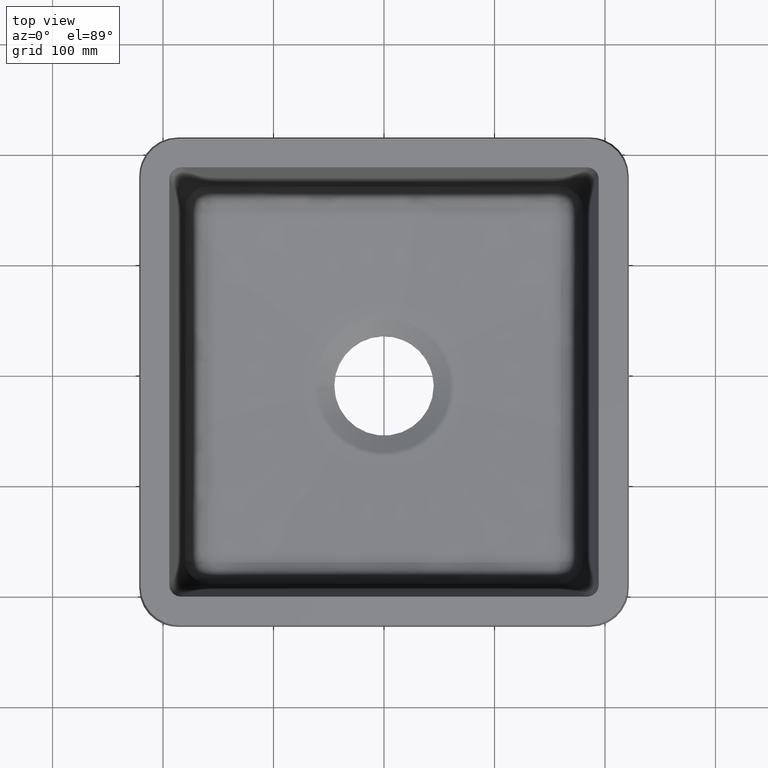
[diagram: clean part render]
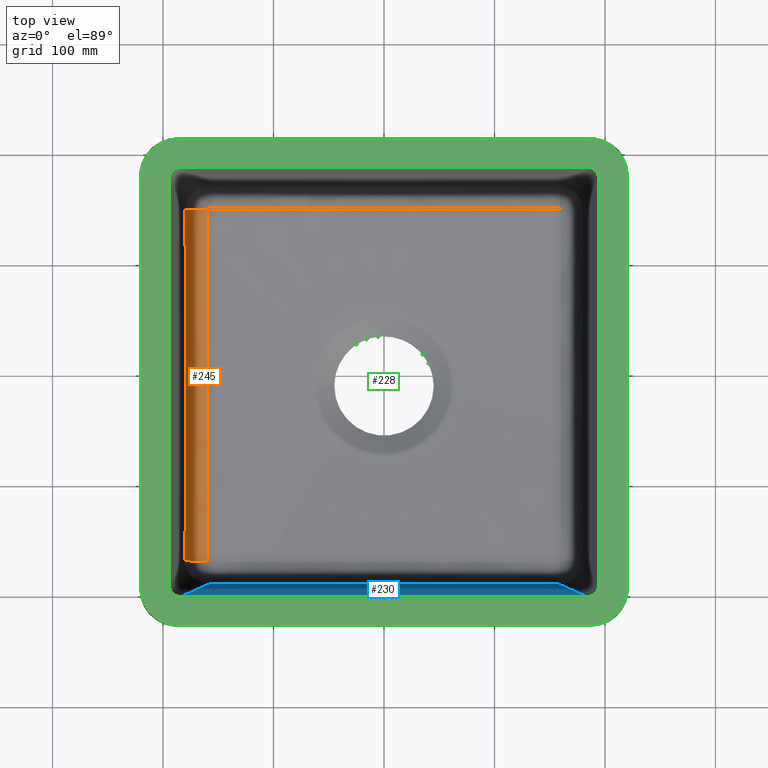
[diagram: same view with three faces highlighted in distinct colors, each labeled with its STEP entity id]
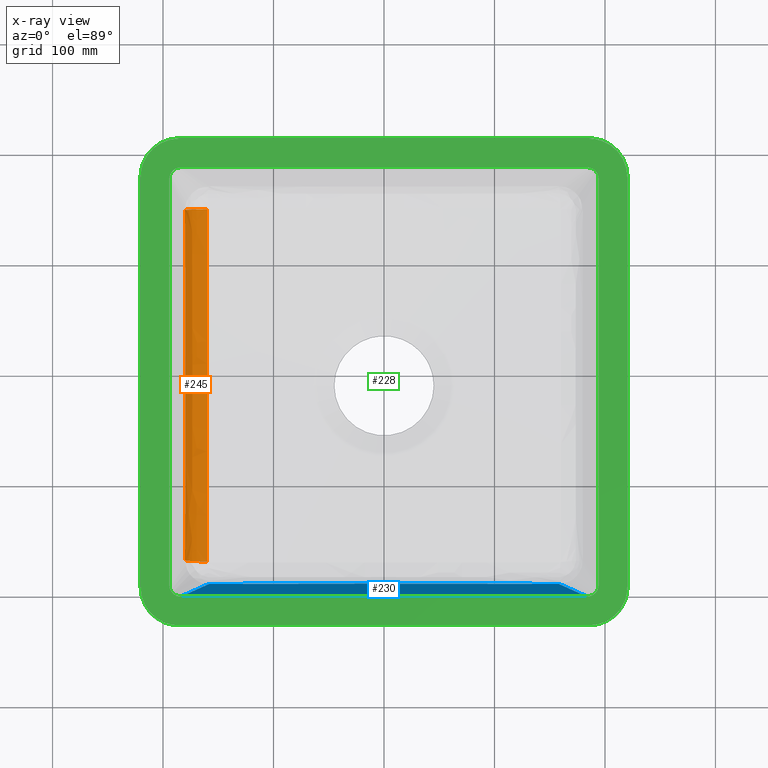
[diagram: x-ray of the same camera — body ghosted, the three highlighted faces saturated]
A machine part, top view with three faces highlighted in distinct colors.
The next image is the same camera in x-ray (body ghosted, the three faces saturated) — at least one of them is partly hidden behind the body in this view.
Their STEP definitions:

[orange] entity #245 — the highlighted face is a freeform B-spline surface patch.
#245=ADVANCED_FACE('',(#370),#296,.T.);
#296=(
BOUNDED_SURFACE()
B_SPLINE_SURFACE(3,2,((#4370,#4371,#4372),(#4373,#4374,#4375),(#4376,#4377,
#4378),(#4379,#4380,#4381),(#4382,#4383,#4384),(#4385,#4386,#4387),(#4388,
#4389,#4390),(#4391,#4392,#4393),(#4394,#4395,#4396),(#4397,#4398,#4399)),
 .UNSPECIFIED.,.F.,.F.,.F.)
B_SPLINE_SURFACE_WITH_KNOTS((4,2,2,2,4),(3,3),(0.,0.25,0.5,0.75,1.),(0.,
1.),.UNSPECIFIED.)
GEOMETRIC_REPRESENTATION_ITEM()
RATIONAL_B_SPLINE_SURFACE(((1.,0.753722458812472,1.),(1.,0.755048654292163,
1.),(1.,0.756642108731294,1.),(1.,0.75936203233909,1.),(1.,0.760406984034578,
1.),(1.,0.760404945522215,1.),(1.,0.759359012371978,1.),(1.,0.756640636931758,
1.),(1.,0.755048249876496,1.),(1.,0.753722458812472,1.)))
REPRESENTATION_ITEM('')
SURFACE()
);
#370=FACE_OUTER_BOUND('',#460,.T.);
#460=EDGE_LOOP('',(#861,#862,#863,#864));
#506=CIRCLE('',#1401,21.);
#507=CIRCLE('',#1402,21.);
#861=ORIENTED_EDGE('',*,*,#1209,.T.);
#862=ORIENTED_EDGE('',*,*,#1195,.T.);
#863=ORIENTED_EDGE('',*,*,#1211,.F.);
#864=ORIENTED_EDGE('',*,*,#1212,.F.);
#1011=VERTEX_POINT('',#3843);
#1012=VERTEX_POINT('',#3888);
#1020=VERTEX_POINT('',#4262);
#1021=VERTEX_POINT('',#4304);
#1195=EDGE_CURVE('',#1011,#1012,#1315,.T.);
#1209=EDGE_CURVE('',#1020,#1011,#506,.T.);
#1211=EDGE_CURVE('',#1021,#1012,#507,.T.);
#1212=EDGE_CURVE('',#1020,#1021,#1322,.T.);
#1315=B_SPLINE_CURVE_WITH_KNOTS('',3,(#3889,#3890,#3891,#3892,#3893,#3894),
 .UNSPECIFIED.,.F.,.F.,(4,2,4),(0.,0.5,1.),.UNSPECIFIED.);
#1322=B_SPLINE_CURVE_WITH_KNOTS('',3,(#4305,#4306,#4307,#4308,#4309,#4310,
#4311,#4312,#4313,#4314,#4315,#4316,#4317,#4318,#4319,#4320,#4321,#4322,
#4323,#4324,#4325,#4326,#4327,#4328,#4329,#4330,#4331,#4332,#4333,#4334,
#4335,#4336,#4337,#4338,#4339,#4340,#4341,#4342,#4343,#4344,#4345,#4346,
#4347,#4348,#4349,#4350,#4351,#4352,#4353,#4354,#4355,#4356,#4357,#4358,
#4359,#4360,#4361,#4362,#4363,#4364,#4365,#4366,#4367,#4368,#4369),
 .UNSPECIFIED.,.F.,.F.,(4,2,2,2,2,1,2,2,2,2,2,2,2,2,2,1,2,2,2,1,2,2,2,2,
2,2,2,2,2,1,1,2,2,2,4),(0.,0.124999999999995,0.187499999999993,0.218749999999992,
0.234374999999991,0.242187499999991,0.246093749999991,0.249999999999991,
0.312499999999992,0.343749999999992,0.359374999999993,0.374999999999993,
0.437499999999993,0.468749999999994,0.484374999999994,0.492187499999994,
0.496093749999994,0.499999999999994,0.503906249999994,0.507812499999994,
0.515624999999994,0.531249999999994,0.562499999999995,0.624999999999996,
0.640624999999997,0.656249999999997,0.687499999999998,0.75,0.75390625,0.7578125,
0.765625,0.78125,0.8125,0.875,1.),.UNSPECIFIED.);
#1401=AXIS2_PLACEMENT_3D('',#4261,#1566,#1567);
#1402=AXIS2_PLACEMENT_3D('',#4303,#1568,#1569);
#1566=DIRECTION('',(-0.00432931787341213,0.998765517085008,0.049484329728389));
#1567=DIRECTION('',(0.,-0.0494847934771369,0.998774877144257));
#1568=DIRECTION('',(0.00432931787341289,0.998765517085008,-0.0494843297283887));
#1569=DIRECTION('',(0.,0.0494847934771376,0.998774877144257));
#3843=CARTESIAN_POINT('',(-180.089055655968,-50.5692211021995,-162.432873735852));
#3888=CARTESIAN_POINT('',(-180.089055655968,-367.430778897801,-162.432873735852));
#3889=CARTESIAN_POINT('',(-180.089055655968,-50.5692211021995,-162.432873735852));
#3890=CARTESIAN_POINT('',(-179.860279041316,-103.347557207569,-165.047802406974));
#3891=CARTESIAN_POINT('',(-179.68652295149,-156.136208770949,-167.033843601602));
#3892=CARTESIAN_POINT('',(-179.686348553431,-261.778632110806,-167.035836980537));
#3893=CARTESIAN_POINT('',(-179.860196479322,-314.633395895316,-165.048746094878));
#3894=CARTESIAN_POINT('',(-180.089055655968,-367.430778897801,-162.432873735852));
#4261=CARTESIAN_POINT('',(-159.168966996041,-50.5692211021995,-160.602603138151));
#4262=CARTESIAN_POINT('',(-160.207202531762,-49.5358006578254,-181.551448193607));
#4303=CARTESIAN_POINT('',(-159.168966996041,-367.430778897801,-160.602603138151));
#4304=CARTESIAN_POINT('',(-160.207202531762,-368.464199342175,-181.551448193607));
#4305=CARTESIAN_POINT('',(-160.207202531762,-49.5358006578254,-181.551448193607));
#4306=CARTESIAN_POINT('',(-160.191561561557,-63.9672158077429,-182.264134665283));
#4307=CARTESIAN_POINT('',(-160.19698027415,-77.739258922826,-182.894840432203));
#4308=CARTESIAN_POINT('',(-160.19516149748,-97.5801410552334,-183.71792802545));
#4309=CARTESIAN_POINT('',(-160.19418914715,-104.058952399621,-183.971795380344));
#4310=CARTESIAN_POINT('',(-160.194059944153,-113.611093016361,-184.3218536484));
#4311=CARTESIAN_POINT('',(-160.194262433077,-116.767574492209,-184.433415943705));
#4312=CARTESIAN_POINT('',(-160.195198813312,-121.466542537913,-184.593073695592));
#4313=CARTESIAN_POINT('',(-160.195615569756,-123.026913923592,-184.645011997709));
#4314=CARTESIAN_POINT('',(-160.196416854037,-125.359313854923,-184.720998028117));
#4315=CARTESIAN_POINT('',(-160.196861336359,-126.523475276447,-184.758510687629));
#4316=CARTESIAN_POINT('',(-160.197373071827,-127.684729962452,-184.795302813604));
#4317=CARTESIAN_POINT('',(-160.197729167582,-128.458271066839,-184.819670779022));
#4318=CARTESIAN_POINT('',(-160.19789498986,-128.805299677282,-184.830547015824));
#4319=CARTESIAN_POINT('',(-160.201510325718,-136.040127483108,-185.055823378933));
#4320=CARTESIAN_POINT('',(-160.202447605759,-142.727924546489,-185.242505993139));
#4321=CARTESIAN_POINT('',(-160.208013025689,-152.66153701239,-185.484516617253));
#4322=CARTESIAN_POINT('',(-160.210431034621,-155.956590428242,-185.558851275757));
#4323=CARTESIAN_POINT('',(-160.214311757766,-160.887151216103,-185.660849939216));
#4324=CARTESIAN_POINT('',(-160.215634525104,-162.528679609588,-185.693265606319));
#4325=CARTESIAN_POINT('',(-160.218065393184,-165.80991743257,-185.754929165758));
#4326=CARTESIAN_POINT('',(-160.219151741347,-167.404042627121,-185.783408090341));
#4327=CARTESIAN_POINT('',(-160.223254734272,-175.831579227899,-185.925572953873));
#4328=CARTESIAN_POINT('',(-160.219032548151,-182.462595406625,-186.010903374965));
#4329=CARTESIAN_POINT('',(-160.221942670441,-192.38152211076,-186.096296802004));
#4330=CARTESIAN_POINT('',(-160.224047392728,-195.68338910185,-186.117660910251));
#4331=CARTESIAN_POINT('',(-160.227540049646,-200.647943579036,-186.139056521471));
#4332=CARTESIAN_POINT('',(-160.228731430564,-202.304759364756,-186.14441330002));
#4333=CARTESIAN_POINT('',(-160.230122037044,-204.795265976997,-186.149785830055));
#4334=CARTESIAN_POINT('',(-160.230715388613,-206.041840266719,-186.151806435625));
#4335=CARTESIAN_POINT('',(-160.231047876791,-207.290835718211,-186.152828552026));
#4336=CARTESIAN_POINT('',(-160.231197753108,-208.124086298014,-186.153288076477));
#4337=CARTESIAN_POINT('',(-160.231236579046,-208.573354317222,-186.153407506085));
#4338=CARTESIAN_POINT('',(-160.231229399866,-209.343129160578,-186.153422036325));
#4339=CARTESIAN_POINT('',(-160.231198151356,-209.790364720297,-186.153319174074));
#4340=CARTESIAN_POINT('',(-160.231049389836,-210.623841173784,-186.152890517918));
#4341=CARTESIAN_POINT('',(-160.23071902464,-211.873175924664,-186.15191445038));
#4342=CARTESIAN_POINT('',(-160.230129070569,-213.120091237239,-186.149939132934));
#4343=CARTESIAN_POINT('',(-160.228746719958,-215.61128289658,-186.144656164832));
#4344=CARTESIAN_POINT('',(-160.227562802921,-217.268559376393,-186.139357741815));
#4345=CARTESIAN_POINT('',(-160.22409608974,-222.234513774609,-186.118133139921));
#4346=CARTESIAN_POINT('',(-160.222013621315,-225.537337760395,-186.096877628199));
#4347=CARTESIAN_POINT('',(-160.219159083162,-235.459256404175,-186.011793761655));
#4348=CARTESIAN_POINT('',(-160.223407702753,-242.092428224279,-185.926648075454));
#4349=CARTESIAN_POINT('',(-160.219179534254,-250.523038002591,-185.784687082074));
#4350=CARTESIAN_POINT('',(-160.218070946547,-252.119001427288,-185.756222207537));
#4351=CARTESIAN_POINT('',(-160.215618436809,-255.401848738585,-185.694619737482));
#4352=CARTESIAN_POINT('',(-160.214292646051,-257.044201831949,-185.662231654792));
#4353=CARTESIAN_POINT('',(-160.210419831788,-261.977307985904,-185.560306863736));
#4354=CARTESIAN_POINT('',(-160.208030018681,-265.274153478637,-185.486009612383));
#4355=CARTESIAN_POINT('',(-160.202555952345,-275.213514117208,-185.244075686378));
#4356=CARTESIAN_POINT('',(-160.201692360265,-281.90564204078,-185.057396839778));
#4357=CARTESIAN_POINT('',(-160.197939594139,-289.145813891948,-184.832074155008));
#4358=CARTESIAN_POINT('',(-160.197765046111,-289.495024842249,-184.821135221247));
#4359=CARTESIAN_POINT('',(-160.197393851634,-290.268978206933,-184.796766377786));
#4360=CARTESIAN_POINT('',(-160.196860113446,-291.430851946449,-184.759972586794));
#4361=CARTESIAN_POINT('',(-160.195775856297,-294.148677234466,-184.672436727217));
#4362=CARTESIAN_POINT('',(-160.195118031263,-296.490487502101,-184.59451968084));
#4363=CARTESIAN_POINT('',(-160.19412558492,-301.191980638591,-184.434837175291));
#4364=CARTESIAN_POINT('',(-160.193898180136,-304.350170553561,-184.323250954533));
#4365=CARTESIAN_POINT('',(-160.19398280347,-313.907544258021,-183.973098641082));
#4366=CARTESIAN_POINT('',(-160.194965778306,-320.389989455841,-183.71913889721));
#4367=CARTESIAN_POINT('',(-160.19686425544,-340.242416145174,-182.895685060885));
#4368=CARTESIAN_POINT('',(-160.191550989965,-354.023030127322,-182.26461636372));
#4369=CARTESIAN_POINT('',(-160.207202531762,-368.464199342175,-181.551448193607));
#4370=CARTESIAN_POINT('',(-160.207202531762,-368.464199342175,-181.551448193607));
#4371=CARTESIAN_POINT('',(-178.495158767214,-368.340323793407,-180.65119853952));
#4372=CARTESIAN_POINT('',(-180.089055655968,-367.430778897801,-162.432873735852));
#4373=CARTESIAN_POINT('',(-160.178498580842,-341.979997193577,-182.859354063483));
#4374=CARTESIAN_POINT('',(-178.387199112431,-341.909587745217,-181.885183023107));
#4375=CARTESIAN_POINT('',(-179.974626183863,-341.032114198529,-163.740808586982));
#4376=CARTESIAN_POINT('',(-160.177727611765,-315.455122745124,-184.012490651135));
#4377=CARTESIAN_POINT('',(-178.293491746583,-315.397472594459,-182.956263125201));
#4378=CARTESIAN_POINT('',(-179.873742340489,-314.627180581485,-164.893916193259));
#4379=CARTESIAN_POINT('',(-160.206558625162,-262.270563291107,-185.670007891302));
#4380=CARTESIAN_POINT('',(-178.160923478486,-262.253915152626,-184.471525378946));
#4381=CARTESIAN_POINT('',(-179.728728372354,-261.791326470723,-166.551433433668));
#4382=CARTESIAN_POINT('',(-160.231254741829,-235.611315534978,-186.153913093577));
#4383=CARTESIAN_POINT('',(-178.123198003002,-235.578369362854,-184.902729534299));
#4384=CARTESIAN_POINT('',(-179.686392152948,-235.368026275795,-167.035338635783));
#4385=CARTESIAN_POINT('',(-160.231211235129,-182.30273961105,-186.152916404073));
#4386=CARTESIAN_POINT('',(-178.12327596124,-182.335720705065,-184.901838457034));
#4387=CARTESIAN_POINT('',(-179.686479351974,-182.54681460596,-167.034341946356));
#4388=CARTESIAN_POINT('',(-160.206510602909,-155.664428628891,-185.668347592953));
#4389=CARTESIAN_POINT('',(-178.161054864579,-155.681201396279,-184.470023620099));
#4390=CARTESIAN_POINT('',(-179.728873629637,-156.14414883822,-166.549773135324));
#4391=CARTESIAN_POINT('',(-160.17772804806,-102.522064549623,-184.011413376074));
#4392=CARTESIAN_POINT('',(-178.293579099484,-102.57978759972,-182.955264685932));
#4393=CARTESIAN_POINT('',(-179.873836589845,-103.35009902804,-164.892838918192));
#4394=CARTESIAN_POINT('',(-160.178509008543,-76.0103825028765,-182.858878970716));
#4395=CARTESIAN_POINT('',(-178.387238271869,-76.0808256733199,-181.884735449606));
#4396=CARTESIAN_POINT('',(-179.974667743187,-76.9582981398861,-163.740333561742));
#4397=CARTESIAN_POINT('',(-160.207202531762,-49.5358006578254,-181.551448193607));
#4398=CARTESIAN_POINT('',(-178.495158767214,-49.659676206593,-180.65119853952));
#4399=CARTESIAN_POINT('',(-180.089055655968,-50.5692211021995,-162.432873735852));

[blue] entity #230 — the highlighted planar face has unit normal (0, -0.9962, -0.0872).
#82=LINE('',#3648,#106);
#106=VECTOR('',#1532,1.);
#120=PLANE('',#1389);
#230=ADVANCED_FACE('',(#356),#120,.F.);
#356=FACE_OUTER_BOUND('',#444,.T.);
#444=EDGE_LOOP('',(#803,#804,#805,#806));
#803=ORIENTED_EDGE('',*,*,#1172,.T.);
#804=ORIENTED_EDGE('',*,*,#1181,.F.);
#805=ORIENTED_EDGE('',*,*,#1182,.F.);
#806=ORIENTED_EDGE('',*,*,#1183,.F.);
#996=VERTEX_POINT('',#3649);
#997=VERTEX_POINT('',#3650);
#1005=VERTEX_POINT('',#3696);
#1006=VERTEX_POINT('',#3703);
#1172=EDGE_CURVE('',#996,#997,#82,.T.);
#1181=EDGE_CURVE('',#1005,#997,#1304,.T.);
#1182=EDGE_CURVE('',#1006,#1005,#1305,.T.);
#1183=EDGE_CURVE('',#996,#1006,#1306,.T.);
#1304=B_SPLINE_CURVE_WITH_KNOTS('',3,(#3688,#3689,#3690,#3691,#3692,#3693,
#3694,#3695),.UNSPECIFIED.,.F.,.F.,(4,2,2,4),(0.,0.530612244897959,0.795918367346939,
1.),.UNSPECIFIED.);
#1305=B_SPLINE_CURVE_WITH_KNOTS('',3,(#3697,#3698,#3699,#3700,#3701,#3702),
 .UNSPECIFIED.,.F.,.F.,(4,2,4),(0.,0.5,1.),.UNSPECIFIED.);
#1306=B_SPLINE_CURVE_WITH_KNOTS('',3,(#3704,#3705,#3706,#3707,#3708,#3709,
#3710,#3711),.UNSPECIFIED.,.F.,.F.,(4,2,2,4),(0.,0.204081632653061,0.469387755102041,
1.),.UNSPECIFIED.);
#1389=AXIS2_PLACEMENT_3D('',#3712,#1542,#1543);
#1532=DIRECTION('',(1.,0.,0.));
#1542=DIRECTION('',(0.,-0.996194698091746,-0.0871557427476581));
#1543=DIRECTION('',(0.,-0.087155742747658,0.996194698091746));
#3648=CARTESIAN_POINT('',(195.,-403.300090691793,0.));
#3649=CARTESIAN_POINT('',(-183.733262057552,-403.300090691793,-1.06754159910164E-12));
#3650=CARTESIAN_POINT('',(183.733262057553,-403.300090691793,-1.21007804471107E-12));
#3688=CARTESIAN_POINT('',(96.4825473934126,-354.296087599908,-560.118318384919));
#3689=CARTESIAN_POINT('',(116.178237909725,-365.358090732759,-433.679044003126));
#3690=CARTESIAN_POINT('',(135.873928426038,-376.420093865609,-307.239769621333));
#3691=CARTESIAN_POINT('',(165.417464200506,-393.013098564885,-117.580858048643));
#3692=CARTESIAN_POINT('',(175.265309458663,-398.544100131311,-54.3612208577469));
#3693=CARTESIAN_POINT('',(192.688420300016,-408.329718287294,57.4889064799931));
#3694=CARTESIAN_POINT('',(200.263685883213,-412.584334876852,106.119396626837));
#3695=CARTESIAN_POINT('',(207.83895146641,-416.83895146641,154.74988677368));
#3696=CARTESIAN_POINT('',(158.430778897801,-389.089055655968,-162.432873735852));
#3697=CARTESIAN_POINT('',(-158.430778897801,-389.089055655968,-162.432873735852));
#3698=CARTESIAN_POINT('',(-105.652442792431,-388.860279041316,-165.047802406974));
#3699=CARTESIAN_POINT('',(-52.8637912290508,-388.68652295149,-167.033843601602));
#3700=CARTESIAN_POINT('',(52.7786321108062,-388.686348553431,-167.035836980537));
#3701=CARTESIAN_POINT('',(105.633395895316,-388.860196479322,-165.048746094878));
#3702=CARTESIAN_POINT('',(158.430778897801,-389.089055655968,-162.432873735852));
#3703=CARTESIAN_POINT('',(-158.430778897801,-389.089055655968,-162.432873735852));
#3704=CARTESIAN_POINT('',(-207.83895146641,-416.83895146641,154.74988677368));
#3705=CARTESIAN_POINT('',(-200.263685883213,-412.584334876852,106.119396626837));
#3706=CARTESIAN_POINT('',(-192.688420300016,-408.329718287294,57.4889064799932));
#3707=CARTESIAN_POINT('',(-175.265309458662,-398.544100131311,-54.3612208577469));
#3708=CARTESIAN_POINT('',(-165.417464200506,-393.013098564886,-117.580858048643));
#3709=CARTESIAN_POINT('',(-135.873928426038,-376.420093865609,-307.239769621333));
#3710=CARTESIAN_POINT('',(-116.178237909725,-365.358090732759,-433.679044003126));
#3711=CARTESIAN_POINT('',(-96.4825473934126,-354.296087599908,-560.11831838492));
#3712=CARTESIAN_POINT('',(195.,-404.,8.));

[green] entity #228 — the highlighted planar face has unit normal (0, 0, 1).
#49=ELLIPSE('',#1373,35.2668818057622,35.);
#50=ELLIPSE('',#1376,35.2668818057622,35.);
#51=ELLIPSE('',#1379,35.2668818057622,35.);
#52=ELLIPSE('',#1382,35.2668818057622,35.);
#70=LINE('',#3613,#94);
#74=LINE('',#3623,#98);
#77=LINE('',#3631,#101);
#80=LINE('',#3639,#104);
#82=LINE('',#3648,#106);
#83=LINE('',#3658,#107);
#84=LINE('',#3667,#108);
#85=LINE('',#3676,#109);
#94=VECTOR('',#1492,1.);
#98=VECTOR('',#1502,1.);
#101=VECTOR('',#1511,1.);
#104=VECTOR('',#1520,1.);
#106=VECTOR('',#1532,1.);
#107=VECTOR('',#1533,1.);
#108=VECTOR('',#1534,1.);
#109=VECTOR('',#1535,1.);
#119=PLANE('',#1386);
#162=FACE_BOUND('',#440,.T.);
#163=FACE_BOUND('',#441,.T.);
#228=ADVANCED_FACE('',(#162,#163),#119,.T.);
#440=EDGE_LOOP('',(#785,#786,#787,#788,#789,#790,#791,#792));
#441=EDGE_LOOP('',(#793,#794,#795,#796,#797,#798,#799,#800));
#785=ORIENTED_EDGE('',*,*,#1155,.T.);
#786=ORIENTED_EDGE('',*,*,#1159,.T.);
#787=ORIENTED_EDGE('',*,*,#1160,.T.);
#788=ORIENTED_EDGE('',*,*,#1163,.T.);
#789=ORIENTED_EDGE('',*,*,#1164,.T.);
#790=ORIENTED_EDGE('',*,*,#1167,.T.);
#791=ORIENTED_EDGE('',*,*,#1168,.T.);
#792=ORIENTED_EDGE('',*,*,#1170,.T.);
#793=ORIENTED_EDGE('',*,*,#1172,.F.);
#794=ORIENTED_EDGE('',*,*,#1173,.F.);
#795=ORIENTED_EDGE('',*,*,#1174,.F.);
#796=ORIENTED_EDGE('',*,*,#1175,.F.);
#797=ORIENTED_EDGE('',*,*,#1176,.F.);
#798=ORIENTED_EDGE('',*,*,#1177,.F.);
#799=ORIENTED_EDGE('',*,*,#1178,.F.);
#800=ORIENTED_EDGE('',*,*,#1179,.F.);
#987=VERTEX_POINT('',#3614);
#988=VERTEX_POINT('',#3615);
#989=VERTEX_POINT('',#3620);
#990=VERTEX_POINT('',#3624);
#991=VERTEX_POINT('',#3628);
#992=VERTEX_POINT('',#3632);
#993=VERTEX_POINT('',#3636);
#994=VERTEX_POINT('',#3640);
#996=VERTEX_POINT('',#3649);
#997=VERTEX_POINT('',#3650);
#998=VERTEX_POINT('',#3657);
#999=VERTEX_POINT('',#3659);
#1000=VERTEX_POINT('',#3666);
#1001=VERTEX_POINT('',#3668);
#1002=VERTEX_POINT('',#3675);
#1003=VERTEX_POINT('',#3677);
#1155=EDGE_CURVE('',#987,#988,#70,.T.);
#1159=EDGE_CURVE('',#988,#989,#49,.T.);
#1160=EDGE_CURVE('',#989,#990,#74,.T.);
#1163=EDGE_CURVE('',#990,#991,#50,.T.);
#1164=EDGE_CURVE('',#991,#992,#77,.T.);
#1167=EDGE_CURVE('',#992,#993,#51,.T.);
#1168=EDGE_CURVE('',#993,#994,#80,.T.);
#1170=EDGE_CURVE('',#994,#987,#52,.T.);
#1172=EDGE_CURVE('',#996,#997,#82,.T.);
#1173=EDGE_CURVE('',#998,#996,#1300,.T.);
#1174=EDGE_CURVE('',#999,#998,#83,.T.);
#1175=EDGE_CURVE('',#1000,#999,#1301,.T.);
#1176=EDGE_CURVE('',#1001,#1000,#84,.T.);
#1177=EDGE_CURVE('',#1002,#1001,#1302,.T.);
#1178=EDGE_CURVE('',#1003,#1002,#85,.T.);
#1179=EDGE_CURVE('',#997,#1003,#1303,.T.);
#1300=B_SPLINE_CURVE_WITH_KNOTS('',3,(#3651,#3652,#3653,#3654,#3655,#3656),
 .UNSPECIFIED.,.F.,.F.,(4,2,4),(0.,0.5,1.),.UNSPECIFIED.);
#1301=B_SPLINE_CURVE_WITH_KNOTS('',3,(#3660,#3661,#3662,#3663,#3664,#3665),
 .UNSPECIFIED.,.F.,.F.,(4,2,4),(0.,0.5,1.),.UNSPECIFIED.);
#1302=B_SPLINE_CURVE_WITH_KNOTS('',3,(#3669,#3670,#3671,#3672,#3673,#3674),
 .UNSPECIFIED.,.F.,.F.,(4,2,4),(0.,0.5,1.),.UNSPECIFIED.);
#1303=B_SPLINE_CURVE_WITH_KNOTS('',3,(#3678,#3679,#3680,#3681,#3682,#3683),
 .UNSPECIFIED.,.F.,.F.,(4,2,4),(0.,0.5,1.),.UNSPECIFIED.);
#1373=AXIS2_PLACEMENT_3D('',#3621,#1498,#1499);
#1376=AXIS2_PLACEMENT_3D('',#3629,#1507,#1508);
#1379=AXIS2_PLACEMENT_3D('',#3637,#1516,#1517);
#1382=AXIS2_PLACEMENT_3D('',#3643,#1524,#1525);
#1386=AXIS2_PLACEMENT_3D('',#3684,#1536,#1537);
#1492=DIRECTION('',(1.26161707343768E-16,-1.,0.));
#1498=DIRECTION('',(0.,0.,1.));
#1499=DIRECTION('',(-0.707106781186547,-0.707106781186548,0.));
#1502=DIRECTION('',(1.,0.,0.));
#1507=DIRECTION('',(0.,0.,1.));
#1508=DIRECTION('',(0.707106781186548,-0.707106781186547,0.));
#1511=DIRECTION('',(-2.52323414687536E-16,1.,0.));
#1516=DIRECTION('',(0.,0.,1.));
#1517=DIRECTION('',(0.707106781186547,0.707106781186548,0.));
#1520=DIRECTION('',(-1.,0.,0.));
#1524=DIRECTION('',(0.,0.,1.));
#1525=DIRECTION('',(-0.707106781186548,0.707106781186547,0.));
#1532=DIRECTION('',(1.,0.,0.));
#1533=DIRECTION('',(1.42336285208353E-16,-1.,0.));
#1534=DIRECTION('',(-1.,0.,0.));
#1535=DIRECTION('',(-2.84672570416707E-16,1.,0.));
#1536=DIRECTION('',(0.,0.,1.));
#1537=DIRECTION('',(-1.,0.,0.));
#3613=CARTESIAN_POINT('',(-220.349954654104,11.,0.));
#3614=CARTESIAN_POINT('',(-220.349954654104,-23.5168597791074,1.0842021724855E-16));
#3615=CARTESIAN_POINT('',(-220.349954654104,-394.483140220893,0.));
#3620=CARTESIAN_POINT('',(-185.483140220893,-429.349954654104,-2.16840434497101E-16));
#3621=CARTESIAN_POINT('',(-185.216260340087,-394.216260340086,0.));
#3623=CARTESIAN_POINT('',(-220.,-429.349954654104,0.));
#3624=CARTESIAN_POINT('',(185.483140220893,-429.349954654104,0.));
#3628=CARTESIAN_POINT('',(220.349954654104,-394.483140220893,0.));
#3629=CARTESIAN_POINT('',(185.216260340087,-394.216260340086,0.));
#3631=CARTESIAN_POINT('',(220.349954654104,-429.,0.));
#3632=CARTESIAN_POINT('',(220.349954654104,-23.5168597791074,3.46944695195361E-15));
#3636=CARTESIAN_POINT('',(185.483140220893,11.3499546541037,0.));
#3637=CARTESIAN_POINT('',(185.216260340087,-23.7837396599135,0.));
#3639=CARTESIAN_POINT('',(220.,11.3499546541037,0.));
#3640=CARTESIAN_POINT('',(-185.483140220893,11.3499546541037,0.));
#3643=CARTESIAN_POINT('',(-185.216260340087,-23.7837396599135,0.));
#3648=CARTESIAN_POINT('',(195.,-403.300090691793,0.));
#3649=CARTESIAN_POINT('',(-183.733262057552,-403.300090691793,-1.06754159910164E-12));
#3650=CARTESIAN_POINT('',(183.733262057553,-403.300090691793,-1.21007804471107E-12));
#3651=CARTESIAN_POINT('',(-194.300090691793,-392.733262057553,1.64798730217797E-14));
#3652=CARTESIAN_POINT('',(-194.300090691793,-395.526671151292,1.64798730217797E-14));
#3653=CARTESIAN_POINT('',(-193.167597457902,-398.269557749897,3.804691046676E-15));
#3654=CARTESIAN_POINT('',(-189.259416904153,-402.173503281633,3.804691046676E-15));
#3655=CARTESIAN_POINT('',(-186.526421219697,-403.300090691793,3.31765864780564E-14));
#3656=CARTESIAN_POINT('',(-183.733262057553,-403.300090691793,3.31765864780564E-14));
#3657=CARTESIAN_POINT('',(-194.300090691793,-392.733262057553,-1.0819614879957E-12));
#3658=CARTESIAN_POINT('',(-194.300090691793,-404.,0.));
#3659=CARTESIAN_POINT('',(-194.300090691793,-25.2667379424478,-1.19963356378279E-12));
#3660=CARTESIAN_POINT('',(-183.733262057553,-14.6999093082074,-5.20417042793042E-15));
#3661=CARTESIAN_POINT('',(-186.526671151292,-14.6999093082074,-5.20417042793042E-15));
#3662=CARTESIAN_POINT('',(-189.269557749897,-15.8324025420981,-3.804691046676E-15));
#3663=CARTESIAN_POINT('',(-193.173503281633,-19.740583095847,-3.804691046676E-15));
#3664=CARTESIAN_POINT('',(-194.300090691793,-22.4735787803034,-3.90312782094782E-15));
#3665=CARTESIAN_POINT('',(-194.300090691793,-25.2667379424474,-3.90312782094782E-15));
#3666=CARTESIAN_POINT('',(-183.733262057552,-14.6999093082075,-1.21358363173544E-12));
#3667=CARTESIAN_POINT('',(-195.,-14.6999093082074,0.));
#3668=CARTESIAN_POINT('',(183.733262057552,-14.6999093082075,-1.08178078763362E-12));
#3669=CARTESIAN_POINT('',(194.300090691793,-25.2667379424474,-1.99493199737333E-14));
#3670=CARTESIAN_POINT('',(194.300090691793,-22.4733288487083,-1.99493199737333E-14));
#3671=CARTESIAN_POINT('',(193.167597457902,-19.7304422501033,6.0875056746816E-15));
#3672=CARTESIAN_POINT('',(189.259416904153,-15.826496718367,6.0875056746816E-15));
#3673=CARTESIAN_POINT('',(186.526421219697,-14.6999093082074,3.31765864780564E-14));
#3674=CARTESIAN_POINT('',(183.733262057553,-14.6999093082074,3.31765864780564E-14));
#3675=CARTESIAN_POINT('',(194.300090691793,-25.2667379424477,-1.10989776397341E-12));
#3676=CARTESIAN_POINT('',(194.300090691793,-14.,0.));
#3677=CARTESIAN_POINT('',(194.300090691793,-392.733262057552,-1.17426323294663E-12));
#3678=CARTESIAN_POINT('',(183.733262057553,-403.300090691793,-1.99493199737333E-14));
#3679=CARTESIAN_POINT('',(186.526671151292,-403.300090691793,-1.99493199737333E-14));
#3680=CARTESIAN_POINT('',(189.269557749897,-402.167597457902,6.0875056746816E-15));
#3681=CARTESIAN_POINT('',(193.173503281633,-398.259416904153,6.0875056746816E-15));
#3682=CARTESIAN_POINT('',(194.300090691793,-395.526421219697,4.81385764583564E-14));
#3683=CARTESIAN_POINT('',(194.300090691793,-392.733262057553,4.81385764583564E-14));
#3684=CARTESIAN_POINT('',(295.,86.,0.));